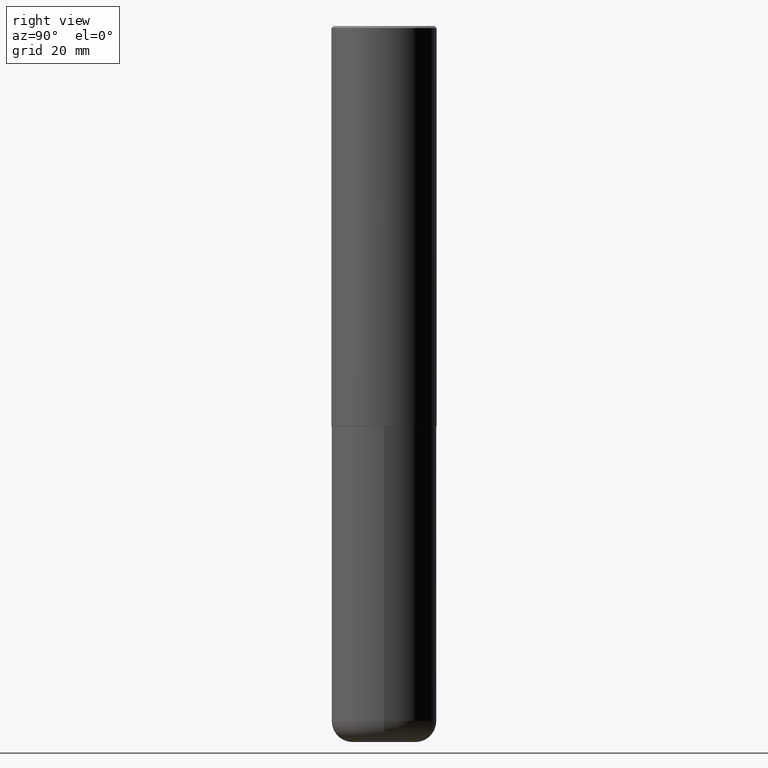
[diagram: clean part render]
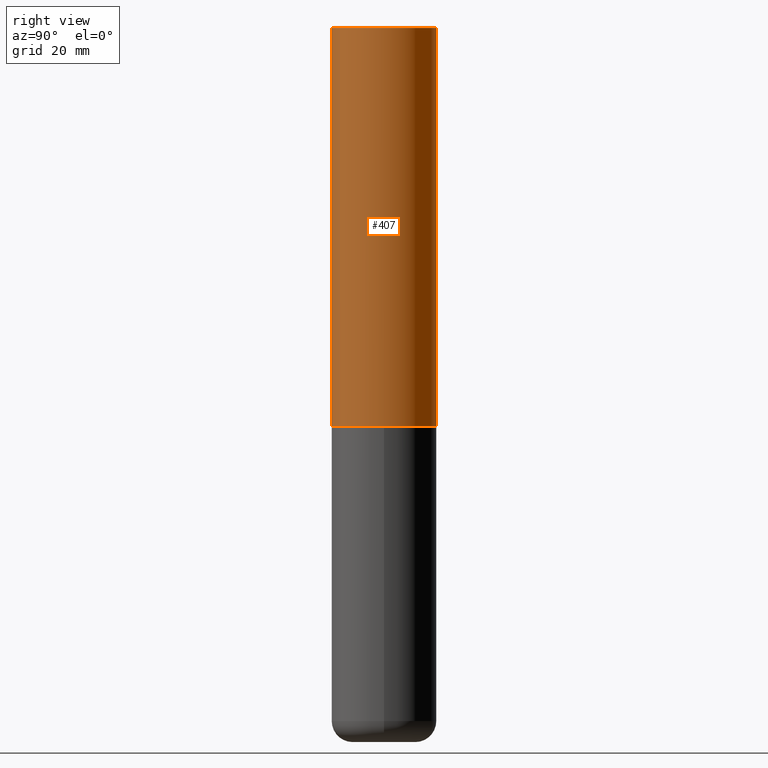
[diagram: same view with one face highlighted and labeled with its STEP entity id]
A machine part, right view. The second image highlights one B-rep face of the part: STEP entity #407.
In plain terms, the highlighted cylindrical surface (partial cylindrical patch) has radius 12.5006 mm, axis along (-0, 0, 1).
Its self-contained STEP definition (entity closure, byte-faithful):
#35 = AXIS2_PLACEMENT_3D ( 'NONE', #110, #148, #203 ) ;
#43 = VERTEX_POINT ( 'NONE', #62 ) ;
#49 = CARTESIAN_POINT ( 'NONE',  ( 9.145751084314172604E-29, -1.305227886897706845E-14, -3.739100000000000534 ) ) ;
#53 = DIRECTION ( 'NONE',  ( -6.982962677686265922E-15, -1.000000000000000000, 3.330506545156063496E-15 ) ) ;
#62 = CARTESIAN_POINT ( 'NONE',  ( 3.436665081823295777E-15, 0.4921499999999998098, -0.02000000000000182188 ) ) ;
#64 = DIRECTION ( 'NONE',  ( -6.982962677686265922E-15, -1.000000000000000000, 3.486624039460257331E-15 ) ) ;
#65 = VECTOR ( 'NONE', #90, 39.37007874015748143 ) ;
#67 = EDGE_CURVE ( 'NONE', #127, #233, #228, .T. ) ;
#90 = DIRECTION ( 'NONE',  ( -2.445976594451651672E-29, 3.490754157143982552E-15, 1.000000000000000000 ) ) ;
#92 = ORIENTED_EDGE ( 'NONE', *, *, #318, .T. ) ;
#110 = CARTESIAN_POINT ( 'NONE',  ( 0.000000000000000000, 0.000000000000000000, 0.000000000000000000 ) ) ;
#120 = FACE_OUTER_BOUND ( 'NONE', #404, .T. ) ;
#127 = VERTEX_POINT ( 'NONE', #139 ) ;
#139 = CARTESIAN_POINT ( 'NONE',  ( -3.436665081823207030E-15, -0.4921500000000134101, -3.739099999999998758 ) ) ;
#147 = AXIS2_PLACEMENT_3D ( 'NONE', #262, #354, #64 ) ;
#148 = DIRECTION ( 'NONE',  ( -2.445976594451651952E-29, 3.490754157143982552E-15, 1.000000000000000000 ) ) ;
#172 = ORIENTED_EDGE ( 'NONE', *, *, #67, .F. ) ;
#197 = CIRCLE ( 'NONE', #147, 0.4921499999999999209 ) ;
#203 = DIRECTION ( 'NONE',  ( -6.982962677686265922E-15, -1.000000000000000000, 3.490754157143982552E-15 ) ) ;
#221 = EDGE_CURVE ( 'NONE', #233, #43, #197, .T. ) ;
#224 = CIRCLE ( 'NONE', #296, 0.4921500000000003650 ) ;
#228 = LINE ( 'NONE', #277, #65 ) ;
#233 = VERTEX_POINT ( 'NONE', #317 ) ;
#239 = VERTEX_POINT ( 'NONE', #412 ) ;
#241 = DIRECTION ( 'NONE',  ( -2.445976594451651672E-29, 3.490754157143982552E-15, 1.000000000000000000 ) ) ;
#244 = CARTESIAN_POINT ( 'NONE',  ( 3.496936074043333291E-15, 0.4921500000000000874, -1.717974658438411319E-15 ) ) ;
#262 = CARTESIAN_POINT ( 'NONE',  ( 4.891953188903329688E-31, -6.981508314288001687E-17, -0.02000000000000010797 ) ) ;
#266 = ORIENTED_EDGE ( 'NONE', *, *, #337, .T. ) ;
#277 = CARTESIAN_POINT ( 'NONE',  ( -3.436665081823296565E-15, -0.4921500000000000874, 1.717974658438411319E-15 ) ) ;
#280 = DIRECTION ( 'NONE',  ( -2.445976594451651952E-29, 3.490754157143982552E-15, 1.000000000000000000 ) ) ;
#281 = ORIENTED_EDGE ( 'NONE', *, *, #221, .F. ) ;
#296 = AXIS2_PLACEMENT_3D ( 'NONE', #49, #280, #53 ) ;
#317 = CARTESIAN_POINT ( 'NONE',  ( -3.376394089603257868E-15, -0.4921499999999999764, -0.01999999999999839059 ) ) ;
#318 = EDGE_CURVE ( 'NONE', #127, #239, #224, .T. ) ;
#333 = LINE ( 'NONE', #244, #384 ) ;
#337 = EDGE_CURVE ( 'NONE', #239, #43, #333, .T. ) ;
#354 = DIRECTION ( 'NONE',  ( -2.445976594451651952E-29, 3.490754157143982552E-15, 1.000000000000000000 ) ) ;
#384 = VECTOR ( 'NONE', #241, 39.37007874015748143 ) ;
#390 = CYLINDRICAL_SURFACE ( 'NONE', #35, 0.4921500000000000874 ) ;
#404 = EDGE_LOOP ( 'NONE', ( #92, #266, #281, #172 ) ) ;
#407 = ADVANCED_FACE ( 'NONE', ( #120 ), #390, .T. ) ;
#412 = CARTESIAN_POINT ( 'NONE',  ( 3.496936074043380229E-15, 0.4921499999999873198, -3.739100000000002311 ) ) ;